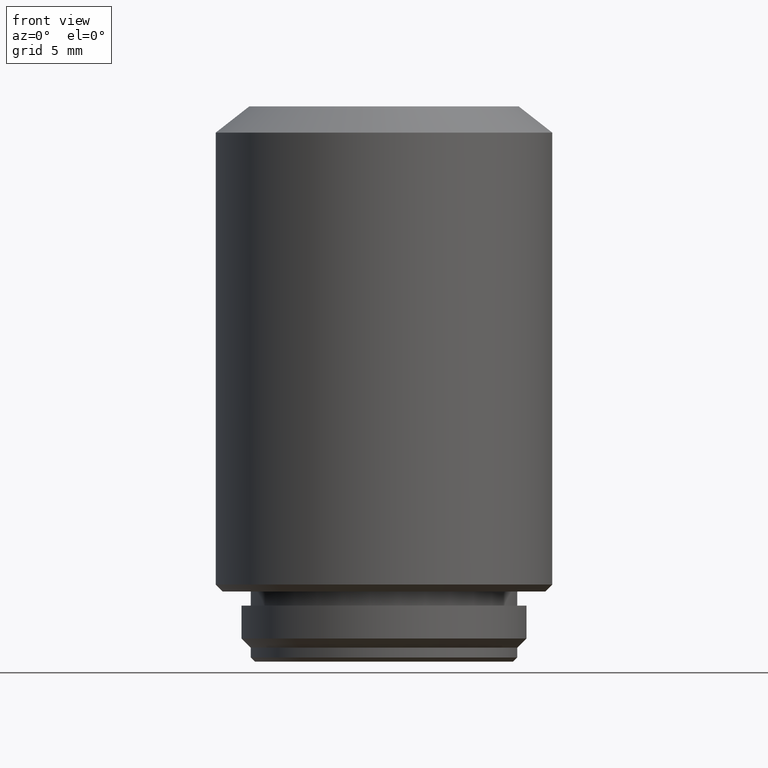
[diagram: clean part render]
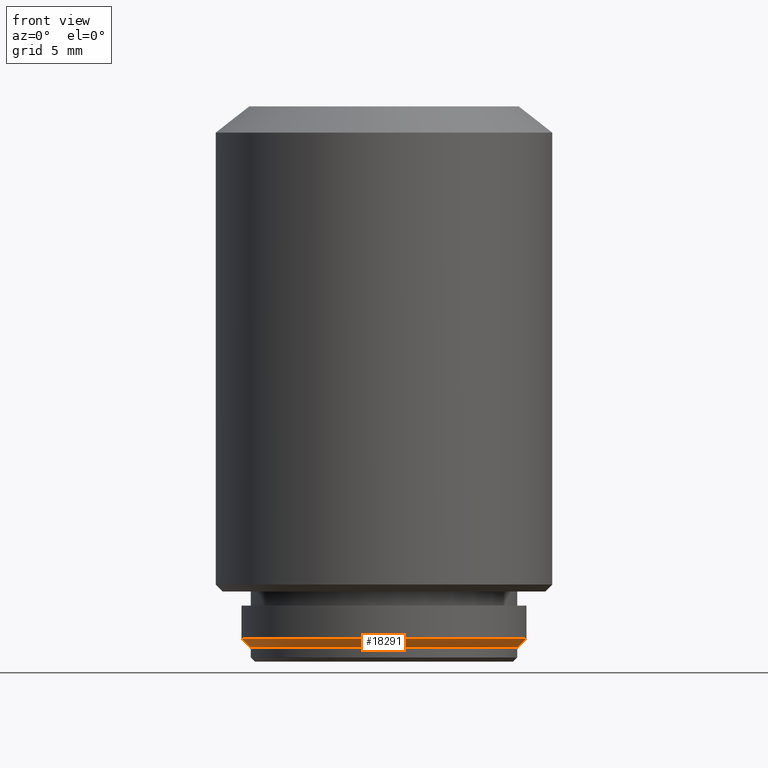
[diagram: same view with one face highlighted and labeled with its STEP entity id]
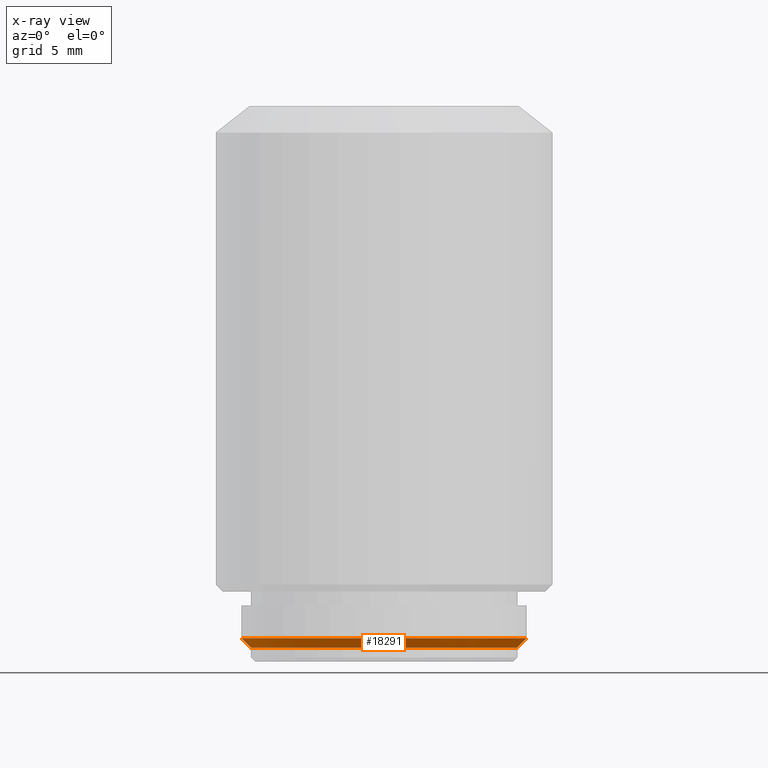
[diagram: x-ray of the same camera — body ghosted, the highlighted face saturated]
A machine part, front view. The second image highlights one B-rep face of the part: STEP entity #18291.
The next image is the same camera in x-ray: the body ghosted, the highlighted face saturated — about 0% of this face is hidden behind the body in this view.
In plain terms, the highlighted conical surface has half-angle 45 deg.
Its self-contained STEP definition (entity closure, byte-faithful):
#854 = DIRECTION ( 'NONE',  ( 0.7071067811865470176, 0.000000000000000000, 0.7071067811865480168 ) ) ;
#2245 = VERTEX_POINT ( 'NONE', #22780 ) ;
#2312 = VECTOR ( 'NONE', #20507, 1000.000000000000000 ) ;
#2765 = ORIENTED_EDGE ( 'NONE', *, *, #20420, .T. ) ;
#3978 = ORIENTED_EDGE ( 'NONE', *, *, #14576, .F. ) ;
#4168 = CARTESIAN_POINT ( 'NONE',  ( 0.000000000000000000, 0.000000000000000000, 1.000000000000000000 ) ) ;
#4702 = AXIS2_PLACEMENT_3D ( 'NONE', #4168, #6525, #11747 ) ;
#4930 = LINE ( 'NONE', #12487, #8599 ) ;
#5368 = CARTESIAN_POINT ( 'NONE',  ( -10.16000000000000014, 1.244241147933710864E-15, 1.649999999999999911 ) ) ;
#5442 = CONICAL_SURFACE ( 'NONE', #19303, 10.16000000000000014, 0.7853981633974476129 ) ;
#6525 = DIRECTION ( 'NONE',  ( 0.000000000000000000, 0.000000000000000000, -1.000000000000000000 ) ) ;
#6551 = ORIENTED_EDGE ( 'NONE', *, *, #11682, .F. ) ;
#6944 = VERTEX_POINT ( 'NONE', #21840 ) ;
#7598 = EDGE_LOOP ( 'NONE', ( #22986, #3978, #2765, #6551 ) ) ;
#8262 = CIRCLE ( 'NONE', #19743, 10.16000000000000014 ) ;
#8599 = VECTOR ( 'NONE', #854, 1000.000000000000000 ) ;
#11682 = EDGE_CURVE ( 'NONE', #13448, #6944, #8262, .T. ) ;
#11747 = DIRECTION ( 'NONE',  ( -1.000000000000000000, 0.000000000000000000, 0.000000000000000000 ) ) ;
#12487 = CARTESIAN_POINT ( 'NONE',  ( 10.16000000000000014, 0.000000000000000000, 1.649999999999999911 ) ) ;
#12828 = VERTEX_POINT ( 'NONE', #15068 ) ;
#13230 = EDGE_CURVE ( 'NONE', #12828, #13448, #16779, .T. ) ;
#13350 = DIRECTION ( 'NONE',  ( 0.000000000000000000, 0.000000000000000000, 1.000000000000000000 ) ) ;
#13448 = VERTEX_POINT ( 'NONE', #22658 ) ;
#14576 = EDGE_CURVE ( 'NONE', #2245, #12828, #14612, .T. ) ;
#14612 = CIRCLE ( 'NONE', #4702, 9.509999999999999787 ) ;
#15068 = CARTESIAN_POINT ( 'NONE',  ( -9.509999999999999787, 1.204440126961421665E-15, 1.000000000000000000 ) ) ;
#15581 = CARTESIAN_POINT ( 'NONE',  ( 0.000000000000000000, 0.000000000000000000, 1.649999999999999911 ) ) ;
#15615 = DIRECTION ( 'NONE',  ( 0.000000000000000000, 0.000000000000000000, 1.000000000000000000 ) ) ;
#15704 = FACE_OUTER_BOUND ( 'NONE', #7598, .T. ) ;
#16779 = LINE ( 'NONE', #5368, #2312 ) ;
#17463 = CARTESIAN_POINT ( 'NONE',  ( 0.000000000000000000, 0.000000000000000000, 1.649999999999999911 ) ) ;
#18291 = ADVANCED_FACE ( 'NONE', ( #15704 ), #5442, .T. ) ;
#19303 = AXIS2_PLACEMENT_3D ( 'NONE', #15581, #13350, #20929 ) ;
#19743 = AXIS2_PLACEMENT_3D ( 'NONE', #17463, #15615, #21323 ) ;
#20420 = EDGE_CURVE ( 'NONE', #2245, #6944, #4930, .T. ) ;
#20507 = DIRECTION ( 'NONE',  ( -0.7071067811865470176, 8.659560562354926695E-17, 0.7071067811865480168 ) ) ;
#20929 = DIRECTION ( 'NONE',  ( 1.000000000000000000, 0.000000000000000000, 0.000000000000000000 ) ) ;
#21323 = DIRECTION ( 'NONE',  ( -1.000000000000000000, 0.000000000000000000, 0.000000000000000000 ) ) ;
#21840 = CARTESIAN_POINT ( 'NONE',  ( 10.16000000000000014, 0.000000000000000000, 1.649999999999999911 ) ) ;
#22658 = CARTESIAN_POINT ( 'NONE',  ( -10.16000000000000014, 1.244241147933710864E-15, 1.649999999999999911 ) ) ;
#22780 = CARTESIAN_POINT ( 'NONE',  ( 9.509999999999999787, 0.000000000000000000, 1.000000000000000000 ) ) ;
#22986 = ORIENTED_EDGE ( 'NONE', *, *, #13230, .F. ) ;